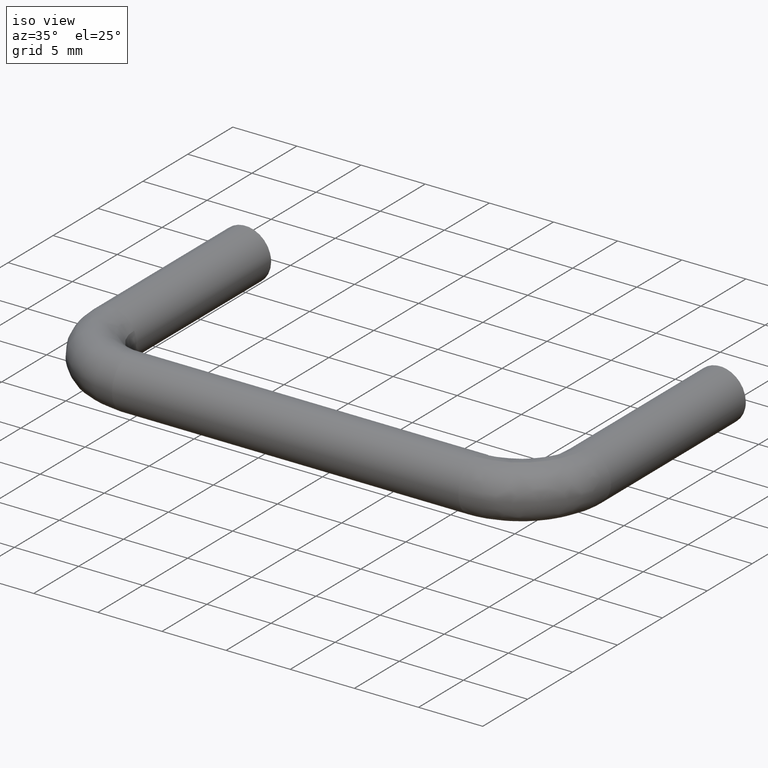
[diagram: clean part render]
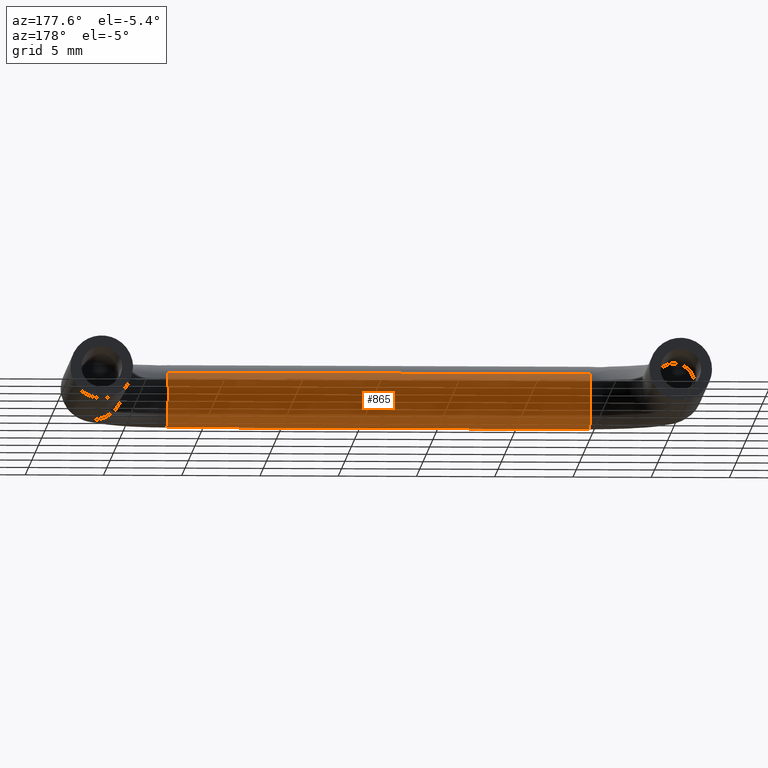
[diagram: tour spotlight — one face highlighted and labeled with its STEP entity id]
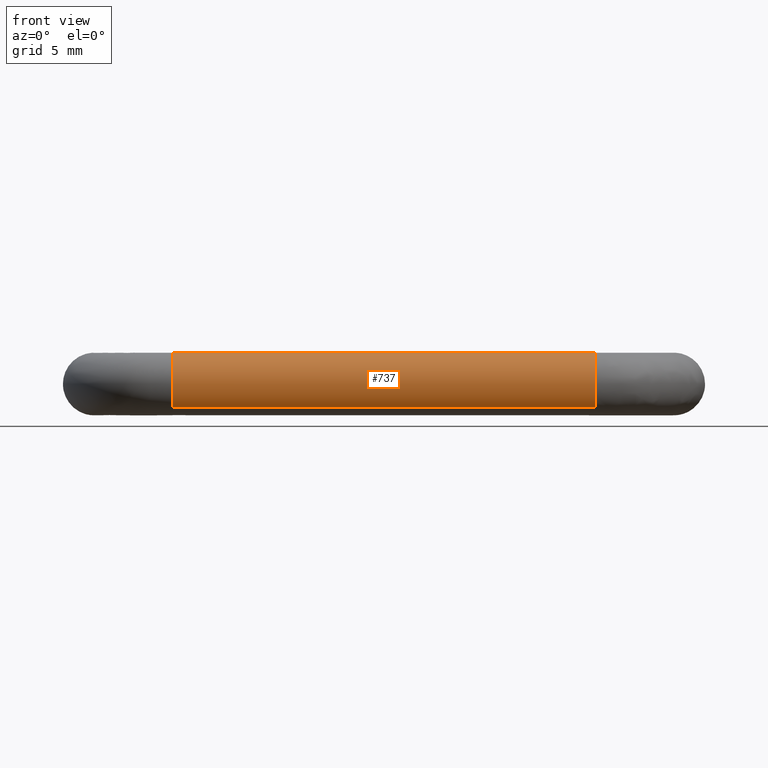
[diagram: tour spotlight — one face highlighted and labeled with its STEP entity id]
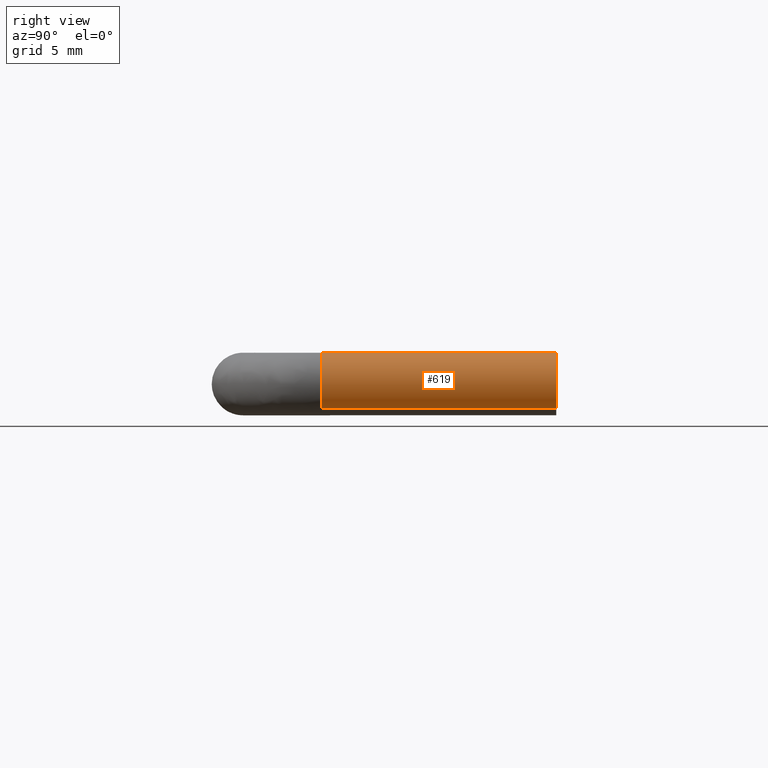
[diagram: tour spotlight — one face highlighted and labeled with its STEP entity id]
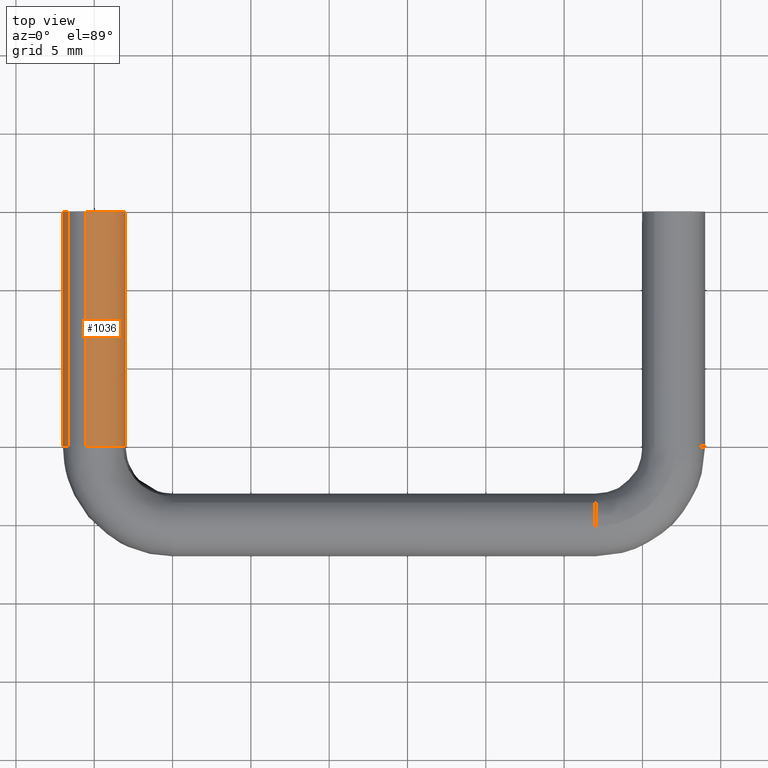
[diagram: tour spotlight — one face highlighted and labeled with its STEP entity id]
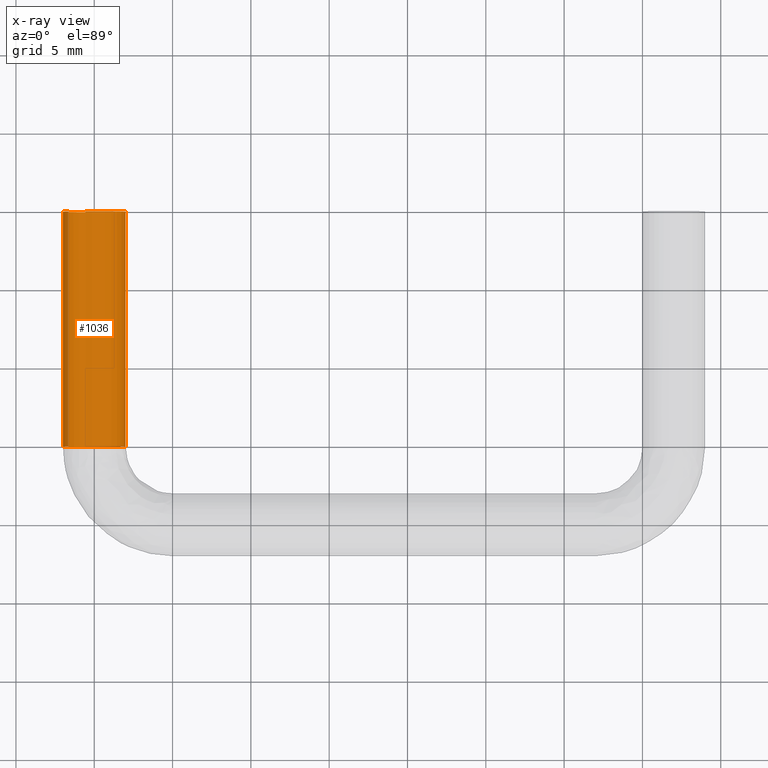
[diagram: x-ray of the same camera — body ghosted, this tour face saturated]
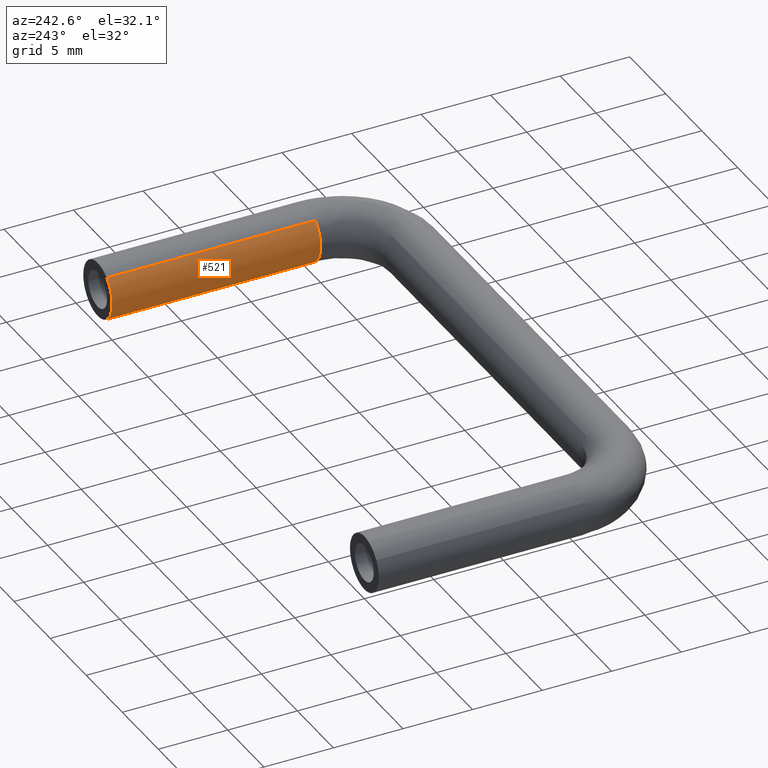
[diagram: tour spotlight — one face highlighted and labeled with its STEP entity id]
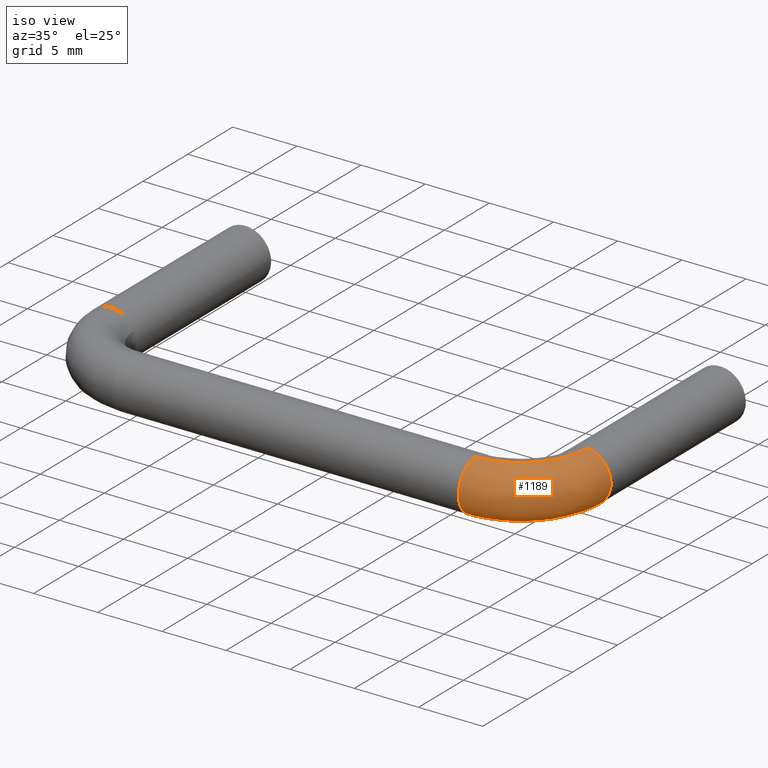
[diagram: tour spotlight — one face highlighted and labeled with its STEP entity id]
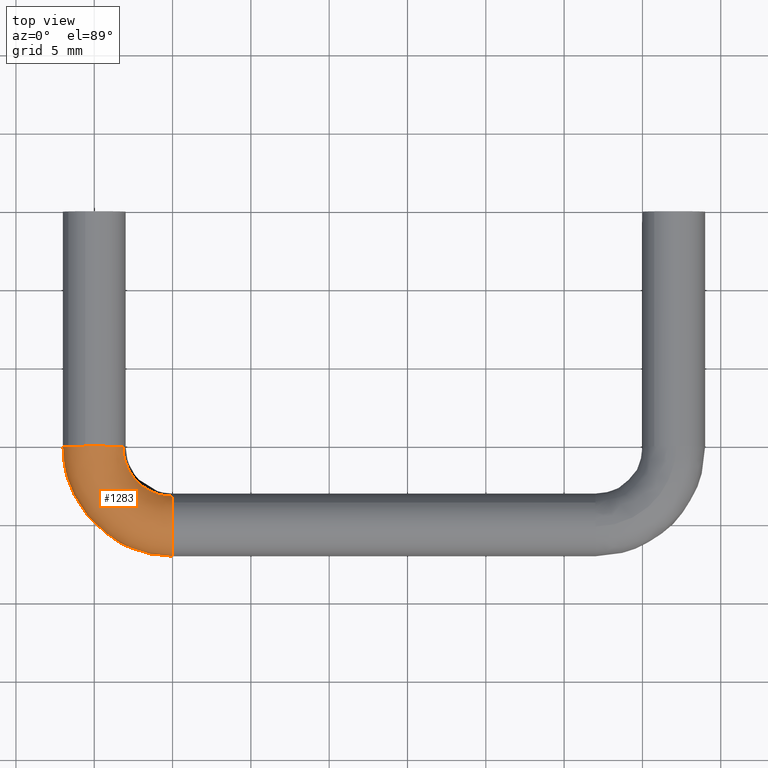
[diagram: tour spotlight — one face highlighted and labeled with its STEP entity id]
A machine part: a face-by-face anatomy tour. The part has 18 B-rep faces; the first image is the clean iso view, then the 7 largest visible faces are spotlighted one at a time (largest first), each with its STEP entity span.

Face 1 — auxiliary view, entity #865. In plain terms, the highlighted face is a freeform B-spline surface patch.
Definition (entity closure, byte-faithful):
#644=CARTESIAN_POINT('',(32.0,-18.591260098857589,1.419666119525739));
#645=VERTEX_POINT('',#644);
#661=CARTESIAN_POINT('',(5.000000000019877,-18.591260119800999,1.419666140301064));
#662=VERTEX_POINT('',#661);
#663=CARTESIAN_POINT('',(5.000000000019877,-18.591260119800999,1.419666140301064));
#664=CARTESIAN_POINT('',(32.0,-18.591260098857589,1.419666119525739));
#665=QUASI_UNIFORM_CURVE('',1,(#663,#664),.UNSPECIFIED.,.F.,.U.);
#666=EDGE_CURVE('',#662,#645,#665,.T.);
#685=CARTESIAN_POINT('',(4.999999182295871,-21.325239809866911,-1.497911695108569));
#686=VERTEX_POINT('',#685);
#700=CARTESIAN_POINT('',(32.0,-21.325239806286259,-1.497911698276708));
#701=VERTEX_POINT('',#700);
#702=CARTESIAN_POINT('',(4.999999182295871,-21.325239809866911,-1.497911695108569));
#703=CARTESIAN_POINT('',(32.0,-21.325239806286259,-1.497911698276708));
#704=QUASI_UNIFORM_CURVE('',1,(#702,#703),.UNSPECIFIED.,.F.,.U.);
#705=EDGE_CURVE('',#686,#701,#704,.T.);
#738=CARTESIAN_POINT('',(4.324998028318658,-21.325240096431472,-1.497911441578005));
#739=CARTESIAN_POINT('',(4.324998028318658,-19.827328654853474,-2.823151538009478));
#740=CARTESIAN_POINT('',(4.324998028318658,-18.502088558421999,-1.325240096431473));
#741=CARTESIAN_POINT('',(4.324998028318658,-17.250593514662498,0.089317726089447));
#742=CARTESIAN_POINT('',(4.324998028318658,-18.591260087566504,1.419666108321545));
#743=CARTESIAN_POINT('',(32.691875049609202,-21.325240096431472,-1.497911441578005));
#744=CARTESIAN_POINT('',(32.691875049609187,-19.827328654853460,-2.823151538009478));
#745=CARTESIAN_POINT('',(32.691875049609202,-18.502088558421988,-1.325240096431473));
#746=CARTESIAN_POINT('',(32.691875049609187,-17.250593514662498,0.089317726089447));
#747=CARTESIAN_POINT('',(32.691875049609202,-18.591260087566489,1.419666108321545));
#755=(BOUNDED_SURFACE()B_SPLINE_SURFACE(2,1,((#738,#743),(#739,#744),(#740,#745),(#741,#746),(#742,#747)),.UNSPECIFIED.,.F.,.F.,.U.)B_SPLINE_SURFACE_WITH_KNOTS((3,2,3),(2,2),(0.0,3.313708498984765,6.494868658010139),(0.0,28.366877021290549),.UNSPECIFIED.)GEOMETRIC_REPRESENTATION_ITEM()RATIONAL_B_SPLINE_SURFACE(((1.0,1.0),(0.707106781186548,0.707106781186548),(1.0,1.0),(0.718822509939086,0.718822509939086),(0.977505800795127,0.977505800795127)))REPRESENTATION_ITEM('')SURFACE());
#756=CARTESIAN_POINT('',(32.0,-18.0,0.0));
#757=VERTEX_POINT('',#756);
#758=CARTESIAN_POINT('',(31.999999999999993,-18.591260098857589,1.419666119525738));
#759=CARTESIAN_POINT('',(32.0,-18.000000000000007,0.832956562603464));
#760=CARTESIAN_POINT('',(32.0,-18.0,0.0));
#768=(BOUNDED_CURVE()B_SPLINE_CURVE(2,(#758,#759,#760),.UNSPECIFIED.,.F.,.U.)B_SPLINE_CURVE_WITH_KNOTS((3,3),(0.874417114703642,1.0),.UNSPECIFIED.)CURVE()GEOMETRIC_REPRESENTATION_ITEM()RATIONAL_B_SPLINE_CURVE((0.853556574977730,0.852870497990676,1.0))REPRESENTATION_ITEM(''));
#769=EDGE_CURVE('',#645,#757,#768,.T.);
#770=ORIENTED_EDGE('',*,*,#769,.T.);
#771=CARTESIAN_POINT('',(32.000000000309427,-19.974867919650571,-1.999842088400309));
#772=VERTEX_POINT('',#771);
#773=CARTESIAN_POINT('',(32.0,-18.0,0.0));
#774=CARTESIAN_POINT('',(32.000000000000007,-18.0,-1.975023858663560));
#775=CARTESIAN_POINT('',(32.000000000309427,-19.974867919650574,-1.999842088400309));
#783=(BOUNDED_CURVE()B_SPLINE_CURVE(2,(#773,#774,#775),.UNSPECIFIED.,.F.,.U.)B_SPLINE_CURVE_WITH_KNOTS((3,3),(0.0,0.247784295819239),.UNSPECIFIED.)CURVE()GEOMETRIC_REPRESENTATION_ITEM()RATIONAL_B_SPLINE_CURVE((1.0,0.709702640104314,0.994854295408121))REPRESENTATION_ITEM(''));
#784=EDGE_CURVE('',#757,#772,#783,.T.);
#785=ORIENTED_EDGE('',*,*,#784,.T.);
#786=CARTESIAN_POINT('',(32.000000000309427,-19.974867919650567,-1.999842088400309));
#787=CARTESIAN_POINT('',(31.999999999999996,-19.987433463433430,-2.0));
#788=CARTESIAN_POINT('',(32.0,-20.0,-2.0));
#789=CARTESIAN_POINT('',(31.999999999999996,-20.757731774383874,-2.000000000000000));
#790=CARTESIAN_POINT('',(31.999999999999996,-21.325239806286262,-1.497911698276709));
#798=(BOUNDED_CURVE()B_SPLINE_CURVE(2,(#786,#787,#788,#789,#790),.UNSPECIFIED.,.F.,.U.)B_SPLINE_CURVE_WITH_KNOTS((3,2,3),(0.247784295819239,0.250000000000000,0.365779829550916),.UNSPECIFIED.)CURVE()GEOMETRIC_REPRESENTATION_ITEM()RATIONAL_B_SPLINE_CURVE((0.994854295408121,0.997404141082234,1.0,0.864355492196637,0.854350168337204))REPRESENTATION_ITEM(''));
#799=EDGE_CURVE('',#772,#701,#798,.T.);
#800=ORIENTED_EDGE('',*,*,#799,.T.);
#801=ORIENTED_EDGE('',*,*,#705,.F.);
#802=CARTESIAN_POINT('',(4.999998076415995,-19.276704659011020,-1.864629681651536));
#803=VERTEX_POINT('',#802);
#804=CARTESIAN_POINT('',(4.999998076415995,-19.276704659011028,-1.864629681651536));
#805=CARTESIAN_POINT('',(4.999998199665956,-19.625684528366516,-1.999999999998314));
#806=CARTESIAN_POINT('',(4.999998379672770,-20.000000000000590,-1.999999999998482));
#807=CARTESIAN_POINT('',(4.999998744062953,-20.757731779851195,-1.999999999998824));
#808=CARTESIAN_POINT('',(4.999999182295871,-21.325239809866908,-1.497911695108569));
#816=(BOUNDED_CURVE()B_SPLINE_CURVE(2,(#804,#805,#806,#807,#808),.UNSPECIFIED.,.F.,.U.)B_SPLINE_CURVE_WITH_KNOTS((3,2,3),(0.188590419563113,0.250000000000000,0.365779830272935),.UNSPECIFIED.)CURVE()GEOMETRIC_REPRESENTATION_ITEM()RATIONAL_B_SPLINE_CURVE((0.891453693067869,0.928054201279426,1.0,0.864355491350739,0.854350168212415))REPRESENTATION_ITEM(''));
#817=EDGE_CURVE('',#803,#686,#816,.T.);
#818=ORIENTED_EDGE('',*,*,#817,.F.);
#819=CARTESIAN_POINT('',(5.0,-18.0,0.0));
#820=VERTEX_POINT('',#819);
#821=CARTESIAN_POINT('',(5.0,-18.0,0.0));
#822=CARTESIAN_POINT('',(4.999999038207998,-18.000000000000355,-1.369392187168714));
#823=CARTESIAN_POINT('',(4.999998076415995,-19.276704659011028,-1.864629681651536));
#831=(BOUNDED_CURVE()B_SPLINE_CURVE(2,(#821,#822,#823),.UNSPECIFIED.,.F.,.U.)B_SPLINE_CURVE_WITH_KNOTS((3,3),(0.0,0.188590419563113),.UNSPECIFIED.)CURVE()GEOMETRIC_REPRESENTATION_ITEM()RATIONAL_B_SPLINE_CURVE((1.0,0.779052579907122,0.891453693067869))REPRESENTATION_ITEM(''));
#832=EDGE_CURVE('',#820,#803,#831,.T.);
#833=ORIENTED_EDGE('',*,*,#832,.F.);
#834=CARTESIAN_POINT('',(5.000000000040116,-18.179788058653141,0.828751162037366));
#835=VERTEX_POINT('',#834);
#836=CARTESIAN_POINT('',(5.000000000040116,-18.179788058653138,0.828751162037366));
#837=CARTESIAN_POINT('',(5.0,-18.000000000000004,0.433877059606800));
#838=CARTESIAN_POINT('',(5.0,-18.0,0.0));
#846=(BOUNDED_CURVE()B_SPLINE_CURVE(2,(#836,#837,#838),.UNSPECIFIED.,.F.,.U.)B_SPLINE_CURVE_WITH_KNOTS((3,3),(0.929624510033230,1.0),.UNSPECIFIED.)CURVE()GEOMETRIC_REPRESENTATION_ITEM()RATIONAL_B_SPLINE_CURVE((0.881519651443544,0.917549984872236,1.0))REPRESENTATION_ITEM(''));
#847=EDGE_CURVE('',#835,#820,#846,.T.);
#848=ORIENTED_EDGE('',*,*,#847,.F.);
#849=CARTESIAN_POINT('',(5.000000000019877,-18.591260119801010,1.419666140301064));
#850=CARTESIAN_POINT('',(5.000000000028706,-18.331453841666921,1.161859436222239));
#851=CARTESIAN_POINT('',(5.000000000040115,-18.179788058653134,0.828751162037366));
#859=(BOUNDED_CURVE()B_SPLINE_CURVE(2,(#849,#850,#851),.UNSPECIFIED.,.F.,.U.)B_SPLINE_CURVE_WITH_KNOTS((3,3),(0.874417110250492,0.929624510033231),.UNSPECIFIED.)CURVE()GEOMETRIC_REPRESENTATION_ITEM()RATIONAL_B_SPLINE_CURVE((0.853556575026387,0.853254966922805,0.881519651443544))REPRESENTATION_ITEM(''));
#860=EDGE_CURVE('',#662,#835,#859,.T.);
#861=ORIENTED_EDGE('',*,*,#860,.F.);
#862=ORIENTED_EDGE('',*,*,#666,.T.);
#863=EDGE_LOOP('',(#770,#785,#800,#801,#818,#833,#848,#861,#862));
#864=FACE_OUTER_BOUND('',#863,.T.);
#865=ADVANCED_FACE('',(#864),#755,.T.);

Face 2 — front view, entity #737. In plain terms, the highlighted face is a freeform B-spline surface patch.
Definition (entity closure, byte-faithful):
#620=CARTESIAN_POINT('',(4.324998028318658,-18.591260087566504,1.419666108321545));
#621=CARTESIAN_POINT('',(4.324998028318658,-18.631890321656851,1.459983639379791));
#622=CARTESIAN_POINT('',(4.324998028318658,-18.674759903568528,1.497911441578005));
#623=CARTESIAN_POINT('',(4.324998028318658,-20.172671345146536,2.823151538009478));
#624=CARTESIAN_POINT('',(4.324998028318658,-21.497911441578012,1.325240096431473));
#625=CARTESIAN_POINT('',(4.324998028318658,-22.823151538009469,-0.172671345146532));
#626=CARTESIAN_POINT('',(4.324998028318658,-21.325240096431472,-1.497911441578005));
#627=CARTESIAN_POINT('',(32.691875049609202,-18.591260087566489,1.419666108321545));
#628=CARTESIAN_POINT('',(32.691875049609195,-18.631890321656844,1.459983639379791));
#629=CARTESIAN_POINT('',(32.691875049609202,-18.674759903568528,1.497911441578005));
#630=CARTESIAN_POINT('',(32.691875049609187,-20.172671345146536,2.823151538009478));
#631=CARTESIAN_POINT('',(32.691875049609202,-21.497911441578001,1.325240096431473));
#632=CARTESIAN_POINT('',(32.691875049609187,-22.823151538009469,-0.172671345146532));
#633=CARTESIAN_POINT('',(32.691875049609202,-21.325240096431472,-1.497911441578005));
#641=(BOUNDED_SURFACE()B_SPLINE_SURFACE(2,1,((#620,#627),(#621,#628),(#622,#629),(#623,#630),(#624,#631),(#625,#632),(#626,#633)),.UNSPECIFIED.,.F.,.F.,.U.)B_SPLINE_SURFACE_WITH_KNOTS((3,2,2,3),(2,2),(0.0,0.132548339959391,3.446256838944149,6.759965337928908),(0.0,28.366877021290549),.UNSPECIFIED.)GEOMETRIC_REPRESENTATION_ITEM()RATIONAL_B_SPLINE_SURFACE(((0.977505800795127,0.977505800795127),(0.988284271247462,0.988284271247462),(1.0,1.0),(0.707106781186548,0.707106781186548),(1.0,1.0),(0.707106781186548,0.707106781186548),(1.0,1.0)))REPRESENTATION_ITEM('')SURFACE());
#642=CARTESIAN_POINT('',(32.000000000036209,-20.139466503343179,1.995131347667422));
#643=VERTEX_POINT('',#642);
#644=CARTESIAN_POINT('',(32.0,-18.591260098857589,1.419666119525739));
#645=VERTEX_POINT('',#644);
#646=CARTESIAN_POINT('',(32.000000000036216,-20.139466503343176,1.995131347667422));
#647=CARTESIAN_POINT('',(32.0,-20.069818231942428,2.000000000000000));
#648=CARTESIAN_POINT('',(32.0,-20.0,2.0));
#649=CARTESIAN_POINT('',(32.0,-19.176095071274911,2.000000000000000));
#650=CARTESIAN_POINT('',(31.999999999999993,-18.591260098857589,1.419666119525738));
#658=(BOUNDED_CURVE()B_SPLINE_CURVE(2,(#646,#647,#648,#649,#650),.UNSPECIFIED.,.F.,.U.)B_SPLINE_CURVE_WITH_KNOTS((3,2,3),(0.737833686501982,0.750000000000000,0.874417114703642),.UNSPECIFIED.)CURVE()GEOMETRIC_REPRESENTATION_ITEM()RATIONAL_B_SPLINE_CURVE((0.972879876316946,0.985746277113888,1.0,0.854236283195871,0.853556574977730))REPRESENTATION_ITEM(''));
#659=EDGE_CURVE('',#643,#645,#658,.T.);
#660=ORIENTED_EDGE('',*,*,#659,.T.);
#661=CARTESIAN_POINT('',(5.000000000019877,-18.591260119800999,1.419666140301064));
#662=VERTEX_POINT('',#661);
#663=CARTESIAN_POINT('',(5.000000000019877,-18.591260119800999,1.419666140301064));
#664=CARTESIAN_POINT('',(32.0,-18.591260098857589,1.419666119525739));
#665=QUASI_UNIFORM_CURVE('',1,(#663,#664),.UNSPECIFIED.,.F.,.U.);
#666=EDGE_CURVE('',#662,#645,#665,.T.);
#667=ORIENTED_EDGE('',*,*,#666,.F.);
#668=CARTESIAN_POINT('',(5.0,-22.0,0.0));
#669=VERTEX_POINT('',#668);
#670=CARTESIAN_POINT('',(5.0,-22.0,0.0));
#671=CARTESIAN_POINT('',(5.000000000000001,-22.000000000000007,2.000000000000000));
#672=CARTESIAN_POINT('',(5.0,-20.0,2.0));
#673=CARTESIAN_POINT('',(5.0,-19.176095105796154,2.000000000000000));
#674=CARTESIAN_POINT('',(5.000000000019877,-18.591260119801010,1.419666140301064));
#682=(BOUNDED_CURVE()B_SPLINE_CURVE(2,(#670,#671,#672,#673,#674),.UNSPECIFIED.,.F.,.U.)B_SPLINE_CURVE_WITH_KNOTS((3,2,3),(0.500000000000000,0.750000000000000,0.874417110250491),.UNSPECIFIED.)CURVE()GEOMETRIC_REPRESENTATION_ITEM()RATIONAL_B_SPLINE_CURVE((1.0,0.707106781186548,1.0,0.854236288413062,0.853556575026387))REPRESENTATION_ITEM(''));
#683=EDGE_CURVE('',#669,#662,#682,.T.);
#684=ORIENTED_EDGE('',*,*,#683,.F.);
#685=CARTESIAN_POINT('',(4.999999182295871,-21.325239809866911,-1.497911695108569));
#686=VERTEX_POINT('',#685);
#687=CARTESIAN_POINT('',(4.999999182295872,-21.325239809866911,-1.497911695108569));
#688=CARTESIAN_POINT('',(4.999999703351359,-22.000000000000114,-0.900934767641625));
#689=CARTESIAN_POINT('',(5.0,-22.0,0.0));
#697=(BOUNDED_CURVE()B_SPLINE_CURVE(2,(#687,#688,#689),.UNSPECIFIED.,.F.,.U.)B_SPLINE_CURVE_WITH_KNOTS((3,3),(0.365779830272935,0.500000000000000),.UNSPECIFIED.)CURVE()GEOMETRIC_REPRESENTATION_ITEM()RATIONAL_B_SPLINE_CURVE((0.854350168212415,0.842751289835808,1.0))REPRESENTATION_ITEM(''));
#698=EDGE_CURVE('',#686,#669,#697,.T.);
#699=ORIENTED_EDGE('',*,*,#698,.F.);
#700=CARTESIAN_POINT('',(32.0,-21.325239806286259,-1.497911698276708));
#701=VERTEX_POINT('',#700);
#702=CARTESIAN_POINT('',(4.999999182295871,-21.325239809866911,-1.497911695108569));
#703=CARTESIAN_POINT('',(32.0,-21.325239806286259,-1.497911698276708));
#704=QUASI_UNIFORM_CURVE('',1,(#702,#703),.UNSPECIFIED.,.F.,.U.);
#705=EDGE_CURVE('',#686,#701,#704,.T.);
#706=ORIENTED_EDGE('',*,*,#705,.T.);
#707=CARTESIAN_POINT('',(32.0,-22.0,0.0));
#708=VERTEX_POINT('',#707);
#709=CARTESIAN_POINT('',(31.999999999999996,-21.325239806286262,-1.497911698276709));
#710=CARTESIAN_POINT('',(32.0,-21.999999999999996,-0.900934773392652));
#711=CARTESIAN_POINT('',(32.0,-22.0,0.0));
#719=(BOUNDED_CURVE()B_SPLINE_CURVE(2,(#709,#710,#711),.UNSPECIFIED.,.F.,.U.)B_SPLINE_CURVE_WITH_KNOTS((3,3),(0.365779829550916,0.500000000000000),.UNSPECIFIED.)CURVE()GEOMETRIC_REPRESENTATION_ITEM()RATIONAL_B_SPLINE_CURVE((0.854350168337204,0.842751288989911,1.0))REPRESENTATION_ITEM(''));
#720=EDGE_CURVE('',#701,#708,#719,.T.);
#721=ORIENTED_EDGE('',*,*,#720,.T.);
#722=CARTESIAN_POINT('',(32.0,-22.0,0.0));
#723=CARTESIAN_POINT('',(32.0,-22.0,1.865073694172844));
#724=CARTESIAN_POINT('',(32.000000000036216,-20.139466503343183,1.995131347667422));
#732=(BOUNDED_CURVE()B_SPLINE_CURVE(2,(#722,#723,#724),.UNSPECIFIED.,.F.,.U.)B_SPLINE_CURVE_WITH_KNOTS((3,3),(0.500000000000000,0.737833686501983),.UNSPECIFIED.)CURVE()GEOMETRIC_REPRESENTATION_ITEM()RATIONAL_B_SPLINE_CURVE((1.0,0.721360504072659,0.972879876316947))REPRESENTATION_ITEM(''));
#733=EDGE_CURVE('',#708,#643,#732,.T.);
#734=ORIENTED_EDGE('',*,*,#733,.T.);
#735=EDGE_LOOP('',(#660,#667,#684,#699,#706,#721,#734));
#736=FACE_OUTER_BOUND('',#735,.T.);
#737=ADVANCED_FACE('',(#736),#641,.T.);

Face 3 — right view, entity #619. In plain terms, the highlighted face is a freeform B-spline surface patch.
Definition (entity closure, byte-faithful):
#428=CARTESIAN_POINT('',(38.245028264184292,-14.999999999999980,-1.565217116370958));
#429=VERTEX_POINT('',#428);
#460=CARTESIAN_POINT('',(35.754971735815722,-14.999999999999980,1.565217116370957));
#461=VERTEX_POINT('',#460);
#475=CARTESIAN_POINT('',(35.754972200187481,4.461709E-015,1.565217485747734));
#476=VERTEX_POINT('',#475);
#477=CARTESIAN_POINT('',(35.754971735815722,-14.999999999999980,1.565217116370957));
#478=CARTESIAN_POINT('',(35.754972200187481,4.461709E-015,1.565217485747734));
#479=QUASI_UNIFORM_CURVE('',1,(#477,#478),.UNSPECIFIED.,.F.,.U.);
#480=EDGE_CURVE('',#461,#476,#479,.T.);
#497=CARTESIAN_POINT('',(38.245027799812519,5.405398E-015,-1.565217485747733));
#498=VERTEX_POINT('',#497);
#514=CARTESIAN_POINT('',(38.245028264184292,-14.999999999999980,-1.565217116370958));
#515=CARTESIAN_POINT('',(38.245027799812519,5.405398E-015,-1.565217485747733));
#516=QUASI_UNIFORM_CURVE('',1,(#514,#515),.UNSPECIFIED.,.F.,.U.);
#517=EDGE_CURVE('',#429,#498,#516,.T.);
#522=CARTESIAN_POINT('',(35.754970726724757,-15.375000000290459,1.565216313704828));
#523=CARTESIAN_POINT('',(37.320187040429602,-15.375000000290452,2.810245586980066));
#524=CARTESIAN_POINT('',(38.565216313704830,-15.375000000290459,1.245029273275238));
#525=CARTESIAN_POINT('',(39.810245586980059,-15.375000000290452,-0.320187040429590));
#526=CARTESIAN_POINT('',(38.245029273275243,-15.375000000290459,-1.565216313704828));
#527=CARTESIAN_POINT('',(35.754970726724757,0.384375000007267,1.565216313704828));
#528=CARTESIAN_POINT('',(37.320187040429602,0.384375000007267,2.810245586980066));
#529=CARTESIAN_POINT('',(38.565216313704830,0.384375000007267,1.245029273275238));
#530=CARTESIAN_POINT('',(39.810245586980059,0.384375000007267,-0.320187040429590));
#531=CARTESIAN_POINT('',(38.245029273275243,0.384375000007267,-1.565216313704828));
#539=(BOUNDED_SURFACE()B_SPLINE_SURFACE(2,1,((#522,#527),(#523,#528),(#524,#529),(#525,#530),(#526,#531)),.UNSPECIFIED.,.F.,.F.,.U.)B_SPLINE_SURFACE_WITH_KNOTS((3,2,3),(2,2),(0.0,3.313708498984768,6.627416997969536),(0.0,15.759375000297730),.UNSPECIFIED.)GEOMETRIC_REPRESENTATION_ITEM()RATIONAL_B_SPLINE_SURFACE(((1.0,1.0),(0.707106781186548,0.707106781186548),(1.0,1.0),(0.707106781186548,0.707106781186548),(1.0,1.0)))REPRESENTATION_ITEM('')SURFACE());
#540=CARTESIAN_POINT('',(39.0,-15.0,0.0));
#541=VERTEX_POINT('',#540);
#542=CARTESIAN_POINT('',(38.245028264184285,-14.999999999999980,-1.565217116370957));
#543=CARTESIAN_POINT('',(38.999999999999993,-14.999999999999995,-0.964686276324077));
#544=CARTESIAN_POINT('',(39.0,-15.0,0.0));
#552=(BOUNDED_CURVE()B_SPLINE_CURVE(2,(#542,#543,#544),.UNSPECIFIED.,.F.,.U.)B_SPLINE_CURVE_WITH_KNOTS((3,3),(0.357863779800497,0.500000000000000),.UNSPECIFIED.)CURVE()GEOMETRIC_REPRESENTATION_ITEM()RATIONAL_B_SPLINE_CURVE((0.856305649992272,0.833477059823160,1.0))REPRESENTATION_ITEM(''));
#553=EDGE_CURVE('',#429,#541,#552,.T.);
#554=ORIENTED_EDGE('',*,*,#553,.F.);
#555=ORIENTED_EDGE('',*,*,#517,.T.);
#556=CARTESIAN_POINT('',(39.0,5.204170E-015,0.0));
#557=VERTEX_POINT('',#556);
#558=CARTESIAN_POINT('',(38.245027799812519,5.405398E-015,-1.565217485747733));
#559=CARTESIAN_POINT('',(39.0,5.204170E-015,-0.964686642030361));
#560=CARTESIAN_POINT('',(39.0,5.204170E-015,0.0));
#568=(BOUNDED_CURVE()B_SPLINE_CURVE(2,(#558,#559,#560),.UNSPECIFIED.,.F.,.U.)B_SPLINE_CURVE_WITH_KNOTS((3,3),(0.357863734890326,0.500000000000000),.UNSPECIFIED.)CURVE()GEOMETRIC_REPRESENTATION_ITEM()RATIONAL_B_SPLINE_CURVE((0.856305664418394,0.833477007207621,1.0))REPRESENTATION_ITEM(''));
#569=EDGE_CURVE('',#498,#557,#568,.T.);
#570=ORIENTED_EDGE('',*,*,#569,.T.);
#571=CARTESIAN_POINT('',(39.0,5.204170E-015,0.0));
#572=CARTESIAN_POINT('',(39.000000000000007,5.204170E-015,2.000000000000000));
#573=CARTESIAN_POINT('',(37.0,5.204170E-015,2.0));
#574=CARTESIAN_POINT('',(36.301569789338281,5.204170E-015,2.000000000000000));
#575=CARTESIAN_POINT('',(35.754972200187488,4.461709E-015,1.565217485747734));
#583=(BOUNDED_CURVE()B_SPLINE_CURVE(2,(#571,#572,#573,#574,#575),.UNSPECIFIED.,.F.,.U.)B_SPLINE_CURVE_WITH_KNOTS((3,2,3),(0.500000000000000,0.750000000000000,0.857863734890325),.UNSPECIFIED.)CURVE()GEOMETRIC_REPRESENTATION_ITEM()RATIONAL_B_SPLINE_CURVE((1.0,0.707106781186548,1.0,0.873629773978927,0.856305664418394))REPRESENTATION_ITEM(''));
#584=EDGE_CURVE('',#557,#476,#583,.T.);
#585=ORIENTED_EDGE('',*,*,#584,.T.);
#586=ORIENTED_EDGE('',*,*,#480,.F.);
#587=CARTESIAN_POINT('',(37.139466504186352,-15.000000000283370,1.995131347608482));
#588=VERTEX_POINT('',#587);
#589=CARTESIAN_POINT('',(37.139466504186345,-15.000000000283373,1.995131347608482));
#590=CARTESIAN_POINT('',(37.069818232788677,-14.999999999999996,2.0));
#591=CARTESIAN_POINT('',(37.0,-15.0,2.0));
#592=CARTESIAN_POINT('',(36.301569456475768,-15.000000000000005,2.000000000000000));
#593=CARTESIAN_POINT('',(35.754971735815708,-14.999999999999984,1.565217116370958));
#601=(BOUNDED_CURVE()B_SPLINE_CURVE(2,(#589,#590,#591,#592,#593),.UNSPECIFIED.,.F.,.U.)B_SPLINE_CURVE_WITH_KNOTS((3,2,3),(0.737833686356618,0.750000000000000,0.857863779800497),.UNSPECIFIED.)CURVE()GEOMETRIC_REPRESENTATION_ITEM()RATIONAL_B_SPLINE_CURVE((0.972879876009488,0.985746276943583,1.0,0.873629721363388,0.856305649992272))REPRESENTATION_ITEM(''));
#602=EDGE_CURVE('',#588,#461,#601,.T.);
#603=ORIENTED_EDGE('',*,*,#602,.F.);
#604=CARTESIAN_POINT('',(39.0,-15.0,0.0));
#605=CARTESIAN_POINT('',(39.000000000000007,-15.0,1.865073692592591));
#606=CARTESIAN_POINT('',(37.139466504186345,-15.000000000283368,1.995131347608482));
#614=(BOUNDED_CURVE()B_SPLINE_CURVE(2,(#604,#605,#606),.UNSPECIFIED.,.F.,.U.)B_SPLINE_CURVE_WITH_KNOTS((3,3),(0.500000000000000,0.737833686356619),.UNSPECIFIED.)CURVE()GEOMETRIC_REPRESENTATION_ITEM()RATIONAL_B_SPLINE_CURVE((1.0,0.721360504242963,0.972879876009491))REPRESENTATION_ITEM(''));
#615=EDGE_CURVE('',#541,#588,#614,.T.);
#616=ORIENTED_EDGE('',*,*,#615,.F.);
#617=EDGE_LOOP('',(#554,#555,#570,#585,#586,#603,#616));
#618=FACE_OUTER_BOUND('',#617,.T.);
#619=ADVANCED_FACE('',(#618),#539,.T.);

Face 4 — top view, entity #1036. An x-ray twin of the same camera follows (body ghosted, this face saturated) — the face is partly hidden behind the body. In plain terms, the highlighted face is a freeform B-spline surface patch.
Definition (entity closure, byte-faithful):
#866=CARTESIAN_POINT('',(-1.654334544363574,0.375000000005425,1.123911569174978));
#867=CARTESIAN_POINT('',(-2.186699413562218,0.375000000005425,0.340300458233743));
#868=CARTESIAN_POINT('',(-1.917639469736385,0.375000000005425,-0.568030689407845));
#869=CARTESIAN_POINT('',(-1.349608780328540,0.375000000005425,-2.485670159144230));
#870=CARTESIAN_POINT('',(0.568030689407845,0.375000000005425,-1.917639469736385));
#871=CARTESIAN_POINT('',(2.485670159144230,0.375000000005426,-1.349608780328540));
#872=CARTESIAN_POINT('',(1.917639469736385,0.375000000005426,0.568030689407845));
#873=CARTESIAN_POINT('',(1.349608780328540,0.375000000005425,2.485670159144230));
#874=CARTESIAN_POINT('',(-0.568030689407845,0.375000000005425,1.917639469736385));
#875=CARTESIAN_POINT('',(-1.654334544363573,-15.384375000222555,1.123911569174978));
#876=CARTESIAN_POINT('',(-2.186699413562216,-15.384375000222546,0.340300458233743));
#877=CARTESIAN_POINT('',(-1.917639469736383,-15.384375000222549,-0.568030689407845));
#878=CARTESIAN_POINT('',(-1.349608780328538,-15.384375000222549,-2.485670159144230));
#879=CARTESIAN_POINT('',(0.568030689407847,-15.384375000222549,-1.917639469736385));
#880=CARTESIAN_POINT('',(2.485670159144233,-15.384375000222549,-1.349608780328540));
#881=CARTESIAN_POINT('',(1.917639469736387,-15.384375000222549,0.568030689407845));
#882=CARTESIAN_POINT('',(1.349608780328542,-15.384375000222549,2.485670159144230));
#883=CARTESIAN_POINT('',(-0.568030689407843,-15.384375000222549,1.917639469736385));
#891=(BOUNDED_SURFACE()B_SPLINE_SURFACE(2,1,((#866,#875),(#867,#876),(#868,#877),(#869,#878),(#870,#879),(#871,#880),(#872,#881),(#873,#882),(#874,#883)),.UNSPECIFIED.,.F.,.F.,.U.)B_SPLINE_SURFACE_WITH_KNOTS((3,2,2,2,3),(2,2),(0.0,1.855676759431465,5.169385258416224,8.483093757400983,11.796802256385741),(0.0,15.759375000227980),.UNSPECIFIED.)GEOMETRIC_REPRESENTATION_ITEM()RATIONAL_B_SPLINE_SURFACE(((0.855662221768731,0.855662221768731),(0.835979797464467,0.835979797464467),(1.0,1.0),(0.707106781186548,0.707106781186548),(1.0,1.0),(0.707106781186548,0.707106781186548),(1.0,1.0),(0.707106781186548,0.707106781186548),(1.0,1.0)))REPRESENTATION_ITEM('')SURFACE());
#892=CARTESIAN_POINT('',(-1.999999999999998,-15.0,0.0));
#893=VERTEX_POINT('',#892);
#894=CARTESIAN_POINT('',(-1.654334544362889,-15.0,1.123911569175985));
#895=VERTEX_POINT('',#894);
#896=CARTESIAN_POINT('',(-1.999999999999998,-15.0,0.0));
#897=CARTESIAN_POINT('',(-1.999999999999998,-15.000000000000002,0.615111482286668));
#898=CARTESIAN_POINT('',(-1.654334544362889,-14.999999999999998,1.123911569175985));
#906=(BOUNDED_CURVE()B_SPLINE_CURVE(2,(#896,#897,#898),.UNSPECIFIED.,.F.,.U.)B_SPLINE_CURVE_WITH_KNOTS((3,3),(0.500000000000000,0.596450219094675),.UNSPECIFIED.)CURVE()GEOMETRIC_REPRESENTATION_ITEM()RATIONAL_B_SPLINE_CURVE((1.0,0.887001539496392,0.861192889176255))REPRESENTATION_ITEM(''));
#907=EDGE_CURVE('',#893,#895,#906,.T.);
#908=ORIENTED_EDGE('',*,*,#907,.T.);
#909=CARTESIAN_POINT('',(-1.654334544362891,6.163132E-016,1.123911569175985));
#910=VERTEX_POINT('',#909);
#911=CARTESIAN_POINT('',(-1.654334544362891,6.163132E-016,1.123911569175985));
#912=CARTESIAN_POINT('',(-1.654334544362889,-15.0,1.123911569175985));
#913=QUASI_UNIFORM_CURVE('',1,(#911,#912),.UNSPECIFIED.,.F.,.U.);
#914=EDGE_CURVE('',#910,#895,#913,.T.);
#915=ORIENTED_EDGE('',*,*,#914,.F.);
#916=CARTESIAN_POINT('',(-2.0,0.0,0.0));
#917=VERTEX_POINT('',#916);
#918=CARTESIAN_POINT('',(-2.0,0.0,0.0));
#919=CARTESIAN_POINT('',(-2.000000000000000,0.0,0.615111482286668));
#920=CARTESIAN_POINT('',(-1.654334544362892,6.163132E-016,1.123911569175985));
#928=(BOUNDED_CURVE()B_SPLINE_CURVE(2,(#918,#919,#920),.UNSPECIFIED.,.F.,.U.)B_SPLINE_CURVE_WITH_KNOTS((3,3),(0.500000000000000,0.596450219094675),.UNSPECIFIED.)CURVE()GEOMETRIC_REPRESENTATION_ITEM()RATIONAL_B_SPLINE_CURVE((1.0,0.887001539496392,0.861192889176255))REPRESENTATION_ITEM(''));
#929=EDGE_CURVE('',#917,#910,#928,.T.);
#930=ORIENTED_EDGE('',*,*,#929,.F.);
#931=CARTESIAN_POINT('',(2.0,0.0,0.0));
#932=VERTEX_POINT('',#931);
#933=CARTESIAN_POINT('',(2.0,0.0,0.0));
#934=CARTESIAN_POINT('',(2.000000000000000,0.0,-2.000000000000000));
#935=CARTESIAN_POINT('',(0.0,0.0,-2.0));
#936=CARTESIAN_POINT('',(-2.000000000000000,0.0,-2.000000000000000));
#937=CARTESIAN_POINT('',(-2.0,0.0,0.0));
#945=(BOUNDED_CURVE()B_SPLINE_CURVE(2,(#933,#934,#935,#936,#937),.UNSPECIFIED.,.F.,.U.)B_SPLINE_CURVE_WITH_KNOTS((3,2,3),(0.0,0.250000000000000,0.500000000000000),.UNSPECIFIED.)CURVE()GEOMETRIC_REPRESENTATION_ITEM()RATIONAL_B_SPLINE_CURVE((1.0,0.707106781186548,1.0,0.707106781186548,1.0))REPRESENTATION_ITEM(''));
#946=EDGE_CURVE('',#932,#917,#945,.T.);
#947=ORIENTED_EDGE('',*,*,#946,.F.);
#948=CARTESIAN_POINT('',(-0.568029256808809,-2.775558E-016,1.917639894090389));
#949=VERTEX_POINT('',#948);
#950=CARTESIAN_POINT('',(-0.568029256808809,-2.775558E-016,1.917639894090389));
#951=CARTESIAN_POINT('',(-0.289985436214155,0.0,2.000000000000000));
#952=CARTESIAN_POINT('',(0.0,0.0,2.0));
#953=CARTESIAN_POINT('',(2.000000000000000,0.0,2.000000000000000));
#954=CARTESIAN_POINT('',(2.0,0.0,0.0));
#962=(BOUNDED_CURVE()B_SPLINE_CURVE(2,(#950,#951,#952,#953,#954),.UNSPECIFIED.,.F.,.U.)B_SPLINE_CURVE_WITH_KNOTS((3,2,3),(0.701641637059280,0.750000000000000,1.0),.UNSPECIFIED.)CURVE()GEOMETRIC_REPRESENTATION_ITEM()RATIONAL_B_SPLINE_CURVE((0.908607385770247,0.943344653686973,1.0,0.707106781186548,1.0))REPRESENTATION_ITEM(''));
#963=EDGE_CURVE('',#949,#932,#962,.T.);
#964=ORIENTED_EDGE('',*,*,#963,.F.);
#965=CARTESIAN_POINT('',(-0.568029238874980,-15.0,1.917639899402601));
#966=VERTEX_POINT('',#965);
#967=CARTESIAN_POINT('',(-0.568029256808809,-2.775558E-016,1.917639894090389));
#968=CARTESIAN_POINT('',(-0.568029238874980,-15.0,1.917639899402601));
#969=QUASI_UNIFORM_CURVE('',1,(#967,#968),.UNSPECIFIED.,.F.,.U.);
#970=EDGE_CURVE('',#949,#966,#969,.T.);
#971=ORIENTED_EDGE('',*,*,#970,.T.);
#972=CARTESIAN_POINT('',(1.820211941307585,-15.000000000132131,0.828751162123636));
#973=VERTEX_POINT('',#972);
#974=CARTESIAN_POINT('',(-0.568029238874980,-15.000000000000005,1.917639899402601));
#975=CARTESIAN_POINT('',(-0.289985426665518,-14.999999999999998,2.000000000000000));
#976=CARTESIAN_POINT('',(1.836910E-015,-15.0,2.0));
#977=CARTESIAN_POINT('',(1.286936769503952,-14.999999999999995,2.000000000000000));
#978=CARTESIAN_POINT('',(1.820211941307585,-15.000000000132138,0.828751162123636));
#986=(BOUNDED_CURVE()B_SPLINE_CURVE(2,(#974,#975,#976,#977,#978),.UNSPECIFIED.,.F.,.U.)B_SPLINE_CURVE_WITH_KNOTS((3,2,3),(0.701641638561408,0.750000000000000,0.929624510018458),.UNSPECIFIED.)CURVE()GEOMETRIC_REPRESENTATION_ITEM()RATIONAL_B_SPLINE_CURVE((0.908607387928295,0.943344655446826,1.0,0.789556796331618,0.881519651428418))REPRESENTATION_ITEM(''));
#987=EDGE_CURVE('',#966,#973,#986,.T.);
#988=ORIENTED_EDGE('',*,*,#987,.T.);
#989=CARTESIAN_POINT('',(2.000000000000002,-15.0,0.0));
#990=VERTEX_POINT('',#989);
#991=CARTESIAN_POINT('',(1.820211941307586,-15.000000000132140,0.828751162123636));
#992=CARTESIAN_POINT('',(2.000000000000002,-14.999999999999998,0.433877059706052));
#993=CARTESIAN_POINT('',(2.000000000000002,-15.0,0.0));
#1001=(BOUNDED_CURVE()B_SPLINE_CURVE(2,(#991,#992,#993),.UNSPECIFIED.,.F.,.U.)B_SPLINE_CURVE_WITH_KNOTS((3,3),(0.929624510018459,1.0),.UNSPECIFIED.)CURVE()GEOMETRIC_REPRESENTATION_ITEM()RATIONAL_B_SPLINE_CURVE((0.881519651428418,0.917549984854930,1.0))REPRESENTATION_ITEM(''));
#1002=EDGE_CURVE('',#973,#990,#1001,.T.);
#1003=ORIENTED_EDGE('',*,*,#1002,.T.);
#1004=CARTESIAN_POINT('',(0.723292547146406,-15.000000000216991,-1.864630765390957));
#1005=VERTEX_POINT('',#1004);
#1006=CARTESIAN_POINT('',(2.000000000000002,-15.0,0.0));
#1007=CARTESIAN_POINT('',(2.000000000000002,-15.000000000000007,-1.369394387691899));
#1008=CARTESIAN_POINT('',(0.723292547146406,-15.000000000216989,-1.864630765390957));
#1016=(BOUNDED_CURVE()B_SPLINE_CURVE(2,(#1006,#1007,#1008),.UNSPECIFIED.,.F.,.U.)B_SPLINE_CURVE_WITH_KNOTS((3,3),(0.0,0.188590655656687),.UNSPECIFIED.)CURVE()GEOMETRIC_REPRESENTATION_ITEM()RATIONAL_B_SPLINE_CURVE((1.0,0.779052303306294,0.891453974494995))REPRESENTATION_ITEM(''));
#1017=EDGE_CURVE('',#990,#1005,#1016,.T.);
#1018=ORIENTED_EDGE('',*,*,#1017,.T.);
#1019=CARTESIAN_POINT('',(0.723292547146406,-15.000000000216989,-1.864630765390957));
#1020=CARTESIAN_POINT('',(0.374313920989274,-15.000000000000004,-2.000000000000000));
#1021=CARTESIAN_POINT('',(1.836910E-015,-15.0,-2.0));
#1022=CARTESIAN_POINT('',(-1.999999999999998,-14.999999999999995,-2.000000000000000));
#1023=CARTESIAN_POINT('',(-1.999999999999998,-15.0,0.0));
#1031=(BOUNDED_CURVE()B_SPLINE_CURVE(2,(#1019,#1020,#1021,#1022,#1023),.UNSPECIFIED.,.F.,.U.)B_SPLINE_CURVE_WITH_KNOTS((3,2,3),(0.188590655656687,0.250000000000000,0.500000000000000),.UNSPECIFIED.)CURVE()GEOMETRIC_REPRESENTATION_ITEM()RATIONAL_B_SPLINE_CURVE((0.891453974494995,0.928054477880254,1.0,0.707106781186548,1.0))REPRESENTATION_ITEM(''));
#1032=EDGE_CURVE('',#1005,#893,#1031,.T.);
#1033=ORIENTED_EDGE('',*,*,#1032,.T.);
#1034=EDGE_LOOP('',(#908,#915,#930,#947,#964,#971,#988,#1003,#1018,#1033));
#1035=FACE_OUTER_BOUND('',#1034,.T.);
#1036=ADVANCED_FACE('',(#1035),#891,.T.);

Face 5 — auxiliary view, entity #521. In plain terms, the highlighted face is a freeform B-spline surface patch.
Definition (entity closure, byte-faithful):
#408=CARTESIAN_POINT('',(38.245029273275243,-15.375000000290459,-1.565216313704828));
#409=CARTESIAN_POINT('',(36.679812959570398,-15.375000000290452,-2.810245586980066));
#410=CARTESIAN_POINT('',(35.434783686295170,-15.375000000290459,-1.245029273275238));
#411=CARTESIAN_POINT('',(34.189754413019941,-15.375000000290452,0.320187040429590));
#412=CARTESIAN_POINT('',(35.754970726724757,-15.375000000290459,1.565216313704828));
#413=CARTESIAN_POINT('',(38.245029273275243,0.384375000007267,-1.565216313704828));
#414=CARTESIAN_POINT('',(36.679812959570398,0.384375000007267,-2.810245586980066));
#415=CARTESIAN_POINT('',(35.434783686295170,0.384375000007267,-1.245029273275238));
#416=CARTESIAN_POINT('',(34.189754413019941,0.384375000007267,0.320187040429590));
#417=CARTESIAN_POINT('',(35.754970726724757,0.384375000007267,1.565216313704828));
#425=(BOUNDED_SURFACE()B_SPLINE_SURFACE(2,1,((#408,#413),(#409,#414),(#410,#415),(#411,#416),(#412,#417)),.UNSPECIFIED.,.F.,.F.,.U.)B_SPLINE_SURFACE_WITH_KNOTS((3,2,3),(2,2),(0.0,3.313708498984759,6.627416997969519),(0.0,15.759375000297730),.UNSPECIFIED.)GEOMETRIC_REPRESENTATION_ITEM()RATIONAL_B_SPLINE_SURFACE(((1.0,1.0),(0.707106781186548,0.707106781186548),(1.0,1.0),(0.707106781186548,0.707106781186548),(1.0,1.0)))REPRESENTATION_ITEM('')SURFACE());
#426=CARTESIAN_POINT('',(36.974867920065897,-15.000000000115220,-1.999842088405528));
#427=VERTEX_POINT('',#426);
#428=CARTESIAN_POINT('',(38.245028264184292,-14.999999999999980,-1.565217116370958));
#429=VERTEX_POINT('',#428);
#430=CARTESIAN_POINT('',(36.974867920065904,-15.000000000115216,-1.999842088405529));
#431=CARTESIAN_POINT('',(36.987433463848809,-14.999999999999996,-2.0));
#432=CARTESIAN_POINT('',(37.0,-15.0,-2.0));
#433=CARTESIAN_POINT('',(37.698430543524225,-15.000000000000002,-2.000000000000000));
#434=CARTESIAN_POINT('',(38.245028264184292,-14.999999999999982,-1.565217116370958));
#442=(BOUNDED_CURVE()B_SPLINE_CURVE(2,(#430,#431,#432,#433,#434),.UNSPECIFIED.,.F.,.U.)B_SPLINE_CURVE_WITH_KNOTS((3,2,3),(0.247784295892287,0.250000000000000,0.357863779800497),.UNSPECIFIED.)CURVE()GEOMETRIC_REPRESENTATION_ITEM()RATIONAL_B_SPLINE_CURVE((0.994854295576251,0.997404141167816,1.0,0.873629721363388,0.856305649992272))REPRESENTATION_ITEM(''));
#443=EDGE_CURVE('',#427,#429,#442,.T.);
#444=ORIENTED_EDGE('',*,*,#443,.F.);
#445=CARTESIAN_POINT('',(34.999999999999993,-15.0,0.0));
#446=VERTEX_POINT('',#445);
#447=CARTESIAN_POINT('',(34.999999999999993,-15.0,0.0));
#448=CARTESIAN_POINT('',(35.000000000000007,-14.999999999999996,-1.975023859483976));
#449=CARTESIAN_POINT('',(36.974867920065904,-15.000000000115220,-1.999842088405528));
#457=(BOUNDED_CURVE()B_SPLINE_CURVE(2,(#447,#448,#449),.UNSPECIFIED.,.F.,.U.)B_SPLINE_CURVE_WITH_KNOTS((3,3),(0.0,0.247784295892287),.UNSPECIFIED.)CURVE()GEOMETRIC_REPRESENTATION_ITEM()RATIONAL_B_SPLINE_CURVE((1.0,0.709702640018732,0.994854295576251))REPRESENTATION_ITEM(''));
#458=EDGE_CURVE('',#446,#427,#457,.T.);
#459=ORIENTED_EDGE('',*,*,#458,.F.);
#460=CARTESIAN_POINT('',(35.754971735815722,-14.999999999999980,1.565217116370957));
#461=VERTEX_POINT('',#460);
#462=CARTESIAN_POINT('',(35.754971735815722,-14.999999999999982,1.565217116370958));
#463=CARTESIAN_POINT('',(35.000000000000007,-14.999999999999995,0.964686276324076));
#464=CARTESIAN_POINT('',(34.999999999999993,-15.0,0.0));
#472=(BOUNDED_CURVE()B_SPLINE_CURVE(2,(#462,#463,#464),.UNSPECIFIED.,.F.,.U.)B_SPLINE_CURVE_WITH_KNOTS((3,3),(0.857863779800497,1.0),.UNSPECIFIED.)CURVE()GEOMETRIC_REPRESENTATION_ITEM()RATIONAL_B_SPLINE_CURVE((0.856305649992272,0.833477059823160,1.0))REPRESENTATION_ITEM(''));
#473=EDGE_CURVE('',#461,#446,#472,.T.);
#474=ORIENTED_EDGE('',*,*,#473,.F.);
#475=CARTESIAN_POINT('',(35.754972200187481,4.461709E-015,1.565217485747734));
#476=VERTEX_POINT('',#475);
#477=CARTESIAN_POINT('',(35.754971735815722,-14.999999999999980,1.565217116370957));
#478=CARTESIAN_POINT('',(35.754972200187481,4.461709E-015,1.565217485747734));
#479=QUASI_UNIFORM_CURVE('',1,(#477,#478),.UNSPECIFIED.,.F.,.U.);
#480=EDGE_CURVE('',#461,#476,#479,.T.);
#481=ORIENTED_EDGE('',*,*,#480,.T.);
#482=CARTESIAN_POINT('',(34.999999999999993,5.204170E-015,0.0));
#483=VERTEX_POINT('',#482);
#484=CARTESIAN_POINT('',(35.754972200187481,4.461709E-015,1.565217485747734));
#485=CARTESIAN_POINT('',(35.0,5.204170E-015,0.964686642030370));
#486=CARTESIAN_POINT('',(34.999999999999993,5.204170E-015,0.0));
#494=(BOUNDED_CURVE()B_SPLINE_CURVE(2,(#484,#485,#486),.UNSPECIFIED.,.F.,.U.)B_SPLINE_CURVE_WITH_KNOTS((3,3),(0.857863734890325,1.0),.UNSPECIFIED.)CURVE()GEOMETRIC_REPRESENTATION_ITEM()RATIONAL_B_SPLINE_CURVE((0.856305664418394,0.833477007207620,1.0))REPRESENTATION_ITEM(''));
#495=EDGE_CURVE('',#476,#483,#494,.T.);
#496=ORIENTED_EDGE('',*,*,#495,.T.);
#497=CARTESIAN_POINT('',(38.245027799812519,5.405398E-015,-1.565217485747733));
#498=VERTEX_POINT('',#497);
#499=CARTESIAN_POINT('',(34.999999999999993,5.204170E-015,0.0));
#500=CARTESIAN_POINT('',(34.999999999999993,5.204170E-015,-2.000000000000000));
#501=CARTESIAN_POINT('',(37.0,5.204170E-015,-2.0));
#502=CARTESIAN_POINT('',(37.698430210661726,5.204170E-015,-2.000000000000000));
#503=CARTESIAN_POINT('',(38.245027799812519,5.405398E-015,-1.565217485747733));
#511=(BOUNDED_CURVE()B_SPLINE_CURVE(2,(#499,#500,#501,#502,#503),.UNSPECIFIED.,.F.,.U.)B_SPLINE_CURVE_WITH_KNOTS((3,2,3),(0.0,0.250000000000000,0.357863734890326),.UNSPECIFIED.)CURVE()GEOMETRIC_REPRESENTATION_ITEM()RATIONAL_B_SPLINE_CURVE((1.0,0.707106781186548,1.0,0.873629773978926,0.856305664418394))REPRESENTATION_ITEM(''));
#512=EDGE_CURVE('',#483,#498,#511,.T.);
#513=ORIENTED_EDGE('',*,*,#512,.T.);
#514=CARTESIAN_POINT('',(38.245028264184292,-14.999999999999980,-1.565217116370958));
#515=CARTESIAN_POINT('',(38.245027799812519,5.405398E-015,-1.565217485747733));
#516=QUASI_UNIFORM_CURVE('',1,(#514,#515),.UNSPECIFIED.,.F.,.U.);
#517=EDGE_CURVE('',#429,#498,#516,.T.);
#518=ORIENTED_EDGE('',*,*,#517,.F.);
#519=EDGE_LOOP('',(#444,#459,#474,#481,#496,#513,#518));
#520=FACE_OUTER_BOUND('',#519,.T.);
#521=ADVANCED_FACE('',(#520),#425,.T.);

Face 6 — iso view, entity #1189. In plain terms, the highlighted face is a freeform B-spline surface patch.
Definition (entity closure, byte-faithful):
#426=CARTESIAN_POINT('',(36.974867920065897,-15.000000000115220,-1.999842088405528));
#427=VERTEX_POINT('',#426);
#428=CARTESIAN_POINT('',(38.245028264184292,-14.999999999999980,-1.565217116370958));
#429=VERTEX_POINT('',#428);
#430=CARTESIAN_POINT('',(36.974867920065904,-15.000000000115216,-1.999842088405529));
#431=CARTESIAN_POINT('',(36.987433463848809,-14.999999999999996,-2.0));
#432=CARTESIAN_POINT('',(37.0,-15.0,-2.0));
#433=CARTESIAN_POINT('',(37.698430543524225,-15.000000000000002,-2.000000000000000));
#434=CARTESIAN_POINT('',(38.245028264184292,-14.999999999999982,-1.565217116370958));
#442=(BOUNDED_CURVE()B_SPLINE_CURVE(2,(#430,#431,#432,#433,#434),.UNSPECIFIED.,.F.,.U.)B_SPLINE_CURVE_WITH_KNOTS((3,2,3),(0.247784295892287,0.250000000000000,0.357863779800497),.UNSPECIFIED.)CURVE()GEOMETRIC_REPRESENTATION_ITEM()RATIONAL_B_SPLINE_CURVE((0.994854295576251,0.997404141167816,1.0,0.873629721363388,0.856305649992272))REPRESENTATION_ITEM(''));
#443=EDGE_CURVE('',#427,#429,#442,.T.);
#540=CARTESIAN_POINT('',(39.0,-15.0,0.0));
#541=VERTEX_POINT('',#540);
#542=CARTESIAN_POINT('',(38.245028264184285,-14.999999999999980,-1.565217116370957));
#543=CARTESIAN_POINT('',(38.999999999999993,-14.999999999999995,-0.964686276324077));
#544=CARTESIAN_POINT('',(39.0,-15.0,0.0));
#552=(BOUNDED_CURVE()B_SPLINE_CURVE(2,(#542,#543,#544),.UNSPECIFIED.,.F.,.U.)B_SPLINE_CURVE_WITH_KNOTS((3,3),(0.357863779800497,0.500000000000000),.UNSPECIFIED.)CURVE()GEOMETRIC_REPRESENTATION_ITEM()RATIONAL_B_SPLINE_CURVE((0.856305649992272,0.833477059823160,1.0))REPRESENTATION_ITEM(''));
#553=EDGE_CURVE('',#429,#541,#552,.T.);
#587=CARTESIAN_POINT('',(37.139466504186352,-15.000000000283370,1.995131347608482));
#588=VERTEX_POINT('',#587);
#604=CARTESIAN_POINT('',(39.0,-15.0,0.0));
#605=CARTESIAN_POINT('',(39.000000000000007,-15.0,1.865073692592591));
#606=CARTESIAN_POINT('',(37.139466504186345,-15.000000000283368,1.995131347608482));
#614=(BOUNDED_CURVE()B_SPLINE_CURVE(2,(#604,#605,#606),.UNSPECIFIED.,.F.,.U.)B_SPLINE_CURVE_WITH_KNOTS((3,3),(0.500000000000000,0.737833686356619),.UNSPECIFIED.)CURVE()GEOMETRIC_REPRESENTATION_ITEM()RATIONAL_B_SPLINE_CURVE((1.0,0.721360504242963,0.972879876009491))REPRESENTATION_ITEM(''));
#615=EDGE_CURVE('',#541,#588,#614,.T.);
#642=CARTESIAN_POINT('',(32.000000000036209,-20.139466503343179,1.995131347667422));
#643=VERTEX_POINT('',#642);
#700=CARTESIAN_POINT('',(32.0,-21.325239806286259,-1.497911698276708));
#701=VERTEX_POINT('',#700);
#707=CARTESIAN_POINT('',(32.0,-22.0,0.0));
#708=VERTEX_POINT('',#707);
#709=CARTESIAN_POINT('',(31.999999999999996,-21.325239806286262,-1.497911698276709));
#710=CARTESIAN_POINT('',(32.0,-21.999999999999996,-0.900934773392652));
#711=CARTESIAN_POINT('',(32.0,-22.0,0.0));
#719=(BOUNDED_CURVE()B_SPLINE_CURVE(2,(#709,#710,#711),.UNSPECIFIED.,.F.,.U.)B_SPLINE_CURVE_WITH_KNOTS((3,3),(0.365779829550916,0.500000000000000),.UNSPECIFIED.)CURVE()GEOMETRIC_REPRESENTATION_ITEM()RATIONAL_B_SPLINE_CURVE((0.854350168337204,0.842751288989911,1.0))REPRESENTATION_ITEM(''));
#720=EDGE_CURVE('',#701,#708,#719,.T.);
#722=CARTESIAN_POINT('',(32.0,-22.0,0.0));
#723=CARTESIAN_POINT('',(32.0,-22.0,1.865073694172844));
#724=CARTESIAN_POINT('',(32.000000000036216,-20.139466503343183,1.995131347667422));
#732=(BOUNDED_CURVE()B_SPLINE_CURVE(2,(#722,#723,#724),.UNSPECIFIED.,.F.,.U.)B_SPLINE_CURVE_WITH_KNOTS((3,3),(0.500000000000000,0.737833686501983),.UNSPECIFIED.)CURVE()GEOMETRIC_REPRESENTATION_ITEM()RATIONAL_B_SPLINE_CURVE((1.0,0.721360504072659,0.972879876316947))REPRESENTATION_ITEM(''));
#733=EDGE_CURVE('',#708,#643,#732,.T.);
#771=CARTESIAN_POINT('',(32.000000000309427,-19.974867919650571,-1.999842088400309));
#772=VERTEX_POINT('',#771);
#786=CARTESIAN_POINT('',(32.000000000309427,-19.974867919650567,-1.999842088400309));
#787=CARTESIAN_POINT('',(31.999999999999996,-19.987433463433430,-2.0));
#788=CARTESIAN_POINT('',(32.0,-20.0,-2.0));
#789=CARTESIAN_POINT('',(31.999999999999996,-20.757731774383874,-2.000000000000000));
#790=CARTESIAN_POINT('',(31.999999999999996,-21.325239806286262,-1.497911698276709));
#798=(BOUNDED_CURVE()B_SPLINE_CURVE(2,(#786,#787,#788,#789,#790),.UNSPECIFIED.,.F.,.U.)B_SPLINE_CURVE_WITH_KNOTS((3,2,3),(0.247784295819239,0.250000000000000,0.365779829550916),.UNSPECIFIED.)CURVE()GEOMETRIC_REPRESENTATION_ITEM()RATIONAL_B_SPLINE_CURVE((0.994854295408121,0.997404141082234,1.0,0.864355492196637,0.854350168337204))REPRESENTATION_ITEM(''));
#799=EDGE_CURVE('',#772,#701,#798,.T.);
#1118=CARTESIAN_POINT('',(32.000000000309427,-19.974867919650571,-1.999842088400309));
#1119=CARTESIAN_POINT('',(36.974867920002865,-19.974867919614450,-1.999842088407632));
#1120=CARTESIAN_POINT('',(36.974867920065904,-15.000000000115215,-1.999842088405529));
#1128=(BOUNDED_CURVE()B_SPLINE_CURVE(2,(#1118,#1119,#1120),.UNSPECIFIED.,.F.,.U.)B_SPLINE_CURVE_WITH_KNOTS((3,3),(-1.734750791529143,-0.265249208389729),.UNSPECIFIED.)CURVE()GEOMETRIC_REPRESENTATION_ITEM()RATIONAL_B_SPLINE_CURVE((0.889029723530633,0.628638946248737,0.889029723559385))REPRESENTATION_ITEM(''));
#1129=EDGE_CURVE('',#772,#427,#1128,.T.);
#1134=CARTESIAN_POINT('',(32.000000000036209,-20.139466503343183,1.995131347667422));
#1135=CARTESIAN_POINT('',(37.139466502584156,-20.139466503078477,1.995131347680864));
#1136=CARTESIAN_POINT('',(37.139466504186338,-15.000000000283373,1.995131347608482));
#1144=(BOUNDED_CURVE()B_SPLINE_CURVE(2,(#1134,#1135,#1136),.UNSPECIFIED.,.F.,.U.)B_SPLINE_CURVE_WITH_KNOTS((3,3),(-1.734750791643761,-0.265249208456181),.UNSPECIFIED.)CURVE()GEOMETRIC_REPRESENTATION_ITEM()RATIONAL_B_SPLINE_CURVE((0.869031711870188,0.614498216555533,0.869031711835566))REPRESENTATION_ITEM(''));
#1145=EDGE_CURVE('',#643,#588,#1144,.T.);
#1150=CARTESIAN_POINT('',(31.656015158313142,-19.934807363819239,-1.999489128105120));
#1151=CARTESIAN_POINT('',(37.330341110615265,-20.330340962292205,-1.999489128105122));
#1152=CARTESIAN_POINT('',(36.934807354247454,-14.656015020996279,-1.999489128105120));
#1153=CARTESIAN_POINT('',(31.655041490187919,-19.948775609078805,-1.999665093439622));
#1154=CARTESIAN_POINT('',(37.345428936027879,-20.345428787284984,-1.999665093439623));
#1155=CARTESIAN_POINT('',(36.948775599479909,-14.655041352482375,-1.999665093439622));
#1156=CARTESIAN_POINT('',(31.514998910677480,-21.957826790600048,-2.024974168174337));
#1157=CARTESIAN_POINT('',(39.515509207997162,-22.515508998869205,-2.024974168174337));
#1158=CARTESIAN_POINT('',(38.957826777104323,-14.514998717067693,-2.024974168174337));
#1159=CARTESIAN_POINT('',(31.513251298798462,-21.982898034807718,-0.025132079766705));
#1160=CARTESIAN_POINT('',(39.542589957830323,-22.542589747948806,-0.025132079766705));
#1161=CARTESIAN_POINT('',(38.982898021263352,-14.513251104491044,-0.025132079766705));
#1162=CARTESIAN_POINT('',(31.511600935508906,-22.006574150517817,1.863425675679395));
#1163=CARTESIAN_POINT('',(39.568163757090353,-22.568163546497214,1.863425675679394));
#1164=CARTESIAN_POINT('',(39.006574136927540,-14.511600740542663,1.863425675679395));
#1165=CARTESIAN_POINT('',(31.643607504989738,-20.112807588154173,1.996127656626344));
#1166=CARTESIAN_POINT('',(37.522608375276420,-20.522608221603281,1.996127656626344));
#1167=CARTESIAN_POINT('',(37.112807578237117,-14.643607362719800,1.996127656626345));
#1168=CARTESIAN_POINT('',(31.644593211447109,-20.098666640952722,1.997118555791739));
#1169=CARTESIAN_POINT('',(37.507334005548529,-20.507333852300423,1.997118555791738));
#1170=CARTESIAN_POINT('',(37.098666631063097,-14.644593069570657,1.997118555791739));
#1178=(BOUNDED_SURFACE()B_SPLINE_SURFACE(2,2,((#1150,#1153,#1156,#1159,#1162,#1165,#1168),(#1151,#1154,#1157,#1160,#1163,#1166,#1169),(#1152,#1155,#1158,#1161,#1164,#1167,#1170)),.UNSPECIFIED.,.F.,.F.,.U.)B_SPLINE_SURFACE_WITH_KNOTS((3,3),(3,1,2,1,3),(0.0,12.756329644327010),(0.0,0.033100193865693,3.346808692850463,6.527968851875842,6.560782661441206),.UNSPECIFIED.)GEOMETRIC_REPRESENTATION_ITEM()RATIONAL_B_SPLINE_SURFACE(((0.921703927040381,0.919023011140657,0.647951709431553,0.916342095240933,0.658687324863928,0.898174816470869,0.900619919330965),(0.604845136684119,0.603085852714250,0.425202094466791,0.601326568744382,0.432247073437895,0.589404746683645,0.591009284247427),(0.921703938725217,0.919023022791506,0.647951717645915,0.916342106857795,0.658687333214390,0.898174827857416,0.900619930748510)))REPRESENTATION_ITEM('')SURFACE());
#1179=ORIENTED_EDGE('',*,*,#615,.T.);
#1180=ORIENTED_EDGE('',*,*,#1145,.F.);
#1181=ORIENTED_EDGE('',*,*,#733,.F.);
#1182=ORIENTED_EDGE('',*,*,#720,.F.);
#1183=ORIENTED_EDGE('',*,*,#799,.F.);
#1184=ORIENTED_EDGE('',*,*,#1129,.T.);
#1185=ORIENTED_EDGE('',*,*,#443,.T.);
#1186=ORIENTED_EDGE('',*,*,#553,.T.);
#1187=EDGE_LOOP('',(#1179,#1180,#1181,#1182,#1183,#1184,#1185,#1186));
#1188=FACE_OUTER_BOUND('',#1187,.T.);
#1189=ADVANCED_FACE('',(#1188),#1178,.T.);

Face 7 — top view, entity #1283. In plain terms, the highlighted face is a freeform B-spline surface patch.
Definition (entity closure, byte-faithful):
#661=CARTESIAN_POINT('',(5.000000000019877,-18.591260119800999,1.419666140301064));
#662=VERTEX_POINT('',#661);
#668=CARTESIAN_POINT('',(5.0,-22.0,0.0));
#669=VERTEX_POINT('',#668);
#670=CARTESIAN_POINT('',(5.0,-22.0,0.0));
#671=CARTESIAN_POINT('',(5.000000000000001,-22.000000000000007,2.000000000000000));
#672=CARTESIAN_POINT('',(5.0,-20.0,2.0));
#673=CARTESIAN_POINT('',(5.0,-19.176095105796154,2.000000000000000));
#674=CARTESIAN_POINT('',(5.000000000019877,-18.591260119801010,1.419666140301064));
#682=(BOUNDED_CURVE()B_SPLINE_CURVE(2,(#670,#671,#672,#673,#674),.UNSPECIFIED.,.F.,.U.)B_SPLINE_CURVE_WITH_KNOTS((3,2,3),(0.500000000000000,0.750000000000000,0.874417110250491),.UNSPECIFIED.)CURVE()GEOMETRIC_REPRESENTATION_ITEM()RATIONAL_B_SPLINE_CURVE((1.0,0.707106781186548,1.0,0.854236288413062,0.853556575026387))REPRESENTATION_ITEM(''));
#683=EDGE_CURVE('',#669,#662,#682,.T.);
#685=CARTESIAN_POINT('',(4.999999182295871,-21.325239809866911,-1.497911695108569));
#686=VERTEX_POINT('',#685);
#687=CARTESIAN_POINT('',(4.999999182295872,-21.325239809866911,-1.497911695108569));
#688=CARTESIAN_POINT('',(4.999999703351359,-22.000000000000114,-0.900934767641625));
#689=CARTESIAN_POINT('',(5.0,-22.0,0.0));
#697=(BOUNDED_CURVE()B_SPLINE_CURVE(2,(#687,#688,#689),.UNSPECIFIED.,.F.,.U.)B_SPLINE_CURVE_WITH_KNOTS((3,3),(0.365779830272935,0.500000000000000),.UNSPECIFIED.)CURVE()GEOMETRIC_REPRESENTATION_ITEM()RATIONAL_B_SPLINE_CURVE((0.854350168212415,0.842751289835808,1.0))REPRESENTATION_ITEM(''));
#698=EDGE_CURVE('',#686,#669,#697,.T.);
#802=CARTESIAN_POINT('',(4.999998076415995,-19.276704659011020,-1.864629681651536));
#803=VERTEX_POINT('',#802);
#804=CARTESIAN_POINT('',(4.999998076415995,-19.276704659011028,-1.864629681651536));
#805=CARTESIAN_POINT('',(4.999998199665956,-19.625684528366516,-1.999999999998314));
#806=CARTESIAN_POINT('',(4.999998379672770,-20.000000000000590,-1.999999999998482));
#807=CARTESIAN_POINT('',(4.999998744062953,-20.757731779851195,-1.999999999998824));
#808=CARTESIAN_POINT('',(4.999999182295871,-21.325239809866908,-1.497911695108569));
#816=(BOUNDED_CURVE()B_SPLINE_CURVE(2,(#804,#805,#806,#807,#808),.UNSPECIFIED.,.F.,.U.)B_SPLINE_CURVE_WITH_KNOTS((3,2,3),(0.188590419563113,0.250000000000000,0.365779830272935),.UNSPECIFIED.)CURVE()GEOMETRIC_REPRESENTATION_ITEM()RATIONAL_B_SPLINE_CURVE((0.891453693067869,0.928054201279426,1.0,0.864355491350739,0.854350168212415))REPRESENTATION_ITEM(''));
#817=EDGE_CURVE('',#803,#686,#816,.T.);
#834=CARTESIAN_POINT('',(5.000000000040116,-18.179788058653141,0.828751162037366));
#835=VERTEX_POINT('',#834);
#849=CARTESIAN_POINT('',(5.000000000019877,-18.591260119801010,1.419666140301064));
#850=CARTESIAN_POINT('',(5.000000000028706,-18.331453841666921,1.161859436222239));
#851=CARTESIAN_POINT('',(5.000000000040115,-18.179788058653134,0.828751162037366));
#859=(BOUNDED_CURVE()B_SPLINE_CURVE(2,(#849,#850,#851),.UNSPECIFIED.,.F.,.U.)B_SPLINE_CURVE_WITH_KNOTS((3,3),(0.874417110250492,0.929624510033231),.UNSPECIFIED.)CURVE()GEOMETRIC_REPRESENTATION_ITEM()RATIONAL_B_SPLINE_CURVE((0.853556575026387,0.853254966922805,0.881519651443544))REPRESENTATION_ITEM(''));
#860=EDGE_CURVE('',#662,#835,#859,.T.);
#892=CARTESIAN_POINT('',(-1.999999999999998,-15.0,0.0));
#893=VERTEX_POINT('',#892);
#894=CARTESIAN_POINT('',(-1.654334544362889,-15.0,1.123911569175985));
#895=VERTEX_POINT('',#894);
#896=CARTESIAN_POINT('',(-1.999999999999998,-15.0,0.0));
#897=CARTESIAN_POINT('',(-1.999999999999998,-15.000000000000002,0.615111482286668));
#898=CARTESIAN_POINT('',(-1.654334544362889,-14.999999999999998,1.123911569175985));
#906=(BOUNDED_CURVE()B_SPLINE_CURVE(2,(#896,#897,#898),.UNSPECIFIED.,.F.,.U.)B_SPLINE_CURVE_WITH_KNOTS((3,3),(0.500000000000000,0.596450219094675),.UNSPECIFIED.)CURVE()GEOMETRIC_REPRESENTATION_ITEM()RATIONAL_B_SPLINE_CURVE((1.0,0.887001539496392,0.861192889176255))REPRESENTATION_ITEM(''));
#907=EDGE_CURVE('',#893,#895,#906,.T.);
#965=CARTESIAN_POINT('',(-0.568029238874980,-15.0,1.917639899402601));
#966=VERTEX_POINT('',#965);
#972=CARTESIAN_POINT('',(1.820211941307585,-15.000000000132131,0.828751162123636));
#973=VERTEX_POINT('',#972);
#974=CARTESIAN_POINT('',(-0.568029238874980,-15.000000000000005,1.917639899402601));
#975=CARTESIAN_POINT('',(-0.289985426665518,-14.999999999999998,2.000000000000000));
#976=CARTESIAN_POINT('',(1.836910E-015,-15.0,2.0));
#977=CARTESIAN_POINT('',(1.286936769503952,-14.999999999999995,2.000000000000000));
#978=CARTESIAN_POINT('',(1.820211941307585,-15.000000000132138,0.828751162123636));
#986=(BOUNDED_CURVE()B_SPLINE_CURVE(2,(#974,#975,#976,#977,#978),.UNSPECIFIED.,.F.,.U.)B_SPLINE_CURVE_WITH_KNOTS((3,2,3),(0.701641638561408,0.750000000000000,0.929624510018458),.UNSPECIFIED.)CURVE()GEOMETRIC_REPRESENTATION_ITEM()RATIONAL_B_SPLINE_CURVE((0.908607387928295,0.943344655446826,1.0,0.789556796331618,0.881519651428418))REPRESENTATION_ITEM(''));
#987=EDGE_CURVE('',#966,#973,#986,.T.);
#1004=CARTESIAN_POINT('',(0.723292547146406,-15.000000000216991,-1.864630765390957));
#1005=VERTEX_POINT('',#1004);
#1019=CARTESIAN_POINT('',(0.723292547146406,-15.000000000216989,-1.864630765390957));
#1020=CARTESIAN_POINT('',(0.374313920989274,-15.000000000000004,-2.000000000000000));
#1021=CARTESIAN_POINT('',(1.836910E-015,-15.0,-2.0));
#1022=CARTESIAN_POINT('',(-1.999999999999998,-14.999999999999995,-2.000000000000000));
#1023=CARTESIAN_POINT('',(-1.999999999999998,-15.0,0.0));
#1031=(BOUNDED_CURVE()B_SPLINE_CURVE(2,(#1019,#1020,#1021,#1022,#1023),.UNSPECIFIED.,.F.,.U.)B_SPLINE_CURVE_WITH_KNOTS((3,2,3),(0.188590655656687,0.250000000000000,0.500000000000000),.UNSPECIFIED.)CURVE()GEOMETRIC_REPRESENTATION_ITEM()RATIONAL_B_SPLINE_CURVE((0.891453974494995,0.928054477880254,1.0,0.707106781186548,1.0))REPRESENTATION_ITEM(''));
#1032=EDGE_CURVE('',#1005,#893,#1031,.T.);
#1055=CARTESIAN_POINT('',(-1.654334544362889,-14.999999999999996,1.123911569175985));
#1056=CARTESIAN_POINT('',(-1.252923911299599,-15.0,1.714765418324617));
#1057=CARTESIAN_POINT('',(-0.568029238874980,-15.000000000000005,1.917639899402601));
#1065=(BOUNDED_CURVE()B_SPLINE_CURVE(2,(#1055,#1056,#1057),.UNSPECIFIED.,.F.,.U.)B_SPLINE_CURVE_WITH_KNOTS((3,3),(0.596450219094674,0.701641638561408),.UNSPECIFIED.)CURVE()GEOMETRIC_REPRESENTATION_ITEM()RATIONAL_B_SPLINE_CURVE((0.861192889176256,0.833045223083025,0.908607387928295))REPRESENTATION_ITEM(''));
#1066=EDGE_CURVE('',#895,#966,#1065,.T.);
#1190=CARTESIAN_POINT('',(0.775814570479479,-14.684258390601009,-1.848828358601665));
#1191=CARTESIAN_POINT('',(0.499429529044453,-18.381907449873200,-1.848828358601666));
#1192=CARTESIAN_POINT('',(4.127972323901496,-19.145238598560720,-1.848828358601666));
#1193=CARTESIAN_POINT('',(4.721547175218090,-19.270108056826359,-1.848828358601666));
#1194=CARTESIAN_POINT('',(5.326311729610633,-19.223382052573250,-1.848828358601665));
#1195=CARTESIAN_POINT('',(0.755587033203281,-14.682746460009813,-1.856696532989326));
#1196=CARTESIAN_POINT('',(0.477878520338914,-18.398101733989829,-1.856696532989326));
#1197=CARTESIAN_POINT('',(4.123796614141955,-19.165088098463144,-1.856696532989326));
#1198=CARTESIAN_POINT('',(4.720213802195782,-19.290555494878973,-1.856696532989326));
#1199=CARTESIAN_POINT('',(5.327874275285883,-19.243605742874124,-1.856696532989326));
#1200=CARTESIAN_POINT('',(-1.020782339847392,-14.549969683494647,-2.547674570167790));
#1201=CARTESIAN_POINT('',(-1.414717266292815,-19.820273396830057,-2.547674570167788));
#1202=CARTESIAN_POINT('',(3.757088456529241,-20.908258471385562,-2.547674570167790));
#1203=CARTESIAN_POINT('',(4.603117837060043,-21.086236413323931,-2.547674570167790));
#1204=CARTESIAN_POINT('',(5.465096036077124,-21.019637277014088,-2.547674570167790));
#1205=CARTESIAN_POINT('',(-1.801239185939189,-14.491633536854549,-0.828751161986569));
#1206=CARTESIAN_POINT('',(-2.246238773570618,-20.445111691961891,-0.828751161986569));
#1207=CARTESIAN_POINT('',(3.595973377386077,-21.674129169277229,-0.828751161986569));
#1208=CARTESIAN_POINT('',(4.551671134011472,-21.875177884314276,-0.828751161986569));
#1209=CARTESIAN_POINT('',(5.525385108984509,-21.799945691876015,-0.828751161986569));
#1210=CARTESIAN_POINT('',(-2.627684892722236,-14.429859899807987,0.991460779383422));
#1211=CARTESIAN_POINT('',(-3.126758155556638,-21.106768936729818,0.991460779383422));
#1212=CARTESIAN_POINT('',(3.425364501158451,-22.485129230834833,0.991460779383422));
#1213=CARTESIAN_POINT('',(4.497192904913289,-22.710608177312658,0.991460779383422));
#1214=CARTESIAN_POINT('',(5.589226749582247,-22.626234221035098,0.991460779383422));
#1215=CARTESIAN_POINT('',(-0.812536494287964,-14.565535259278340,1.820211941369991));
#1216=CARTESIAN_POINT('',(-1.192846063226259,-19.653550560379546,1.820211941369990));
#1217=CARTESIAN_POINT('',(3.800078079922968,-20.703904583184961,1.820211941369990));
#1218=CARTESIAN_POINT('',(4.616845133106254,-20.875726652859925,1.820211941369990));
#1219=CARTESIAN_POINT('',(5.449009369622135,-20.811431036702693,1.820211941369990));
#1220=CARTESIAN_POINT('',(1.002611904146309,-14.701210618748700,2.648963103356558));
#1221=CARTESIAN_POINT('',(0.741066029104122,-18.200332184029268,2.648963103356558));
#1222=CARTESIAN_POINT('',(4.174791658687484,-18.922679935535097,2.648963103356558));
#1223=CARTESIAN_POINT('',(4.736497361299220,-19.040845128407181,2.648963103356558));
#1224=CARTESIAN_POINT('',(5.308791989662021,-18.996627852370285,2.648963103356557));
#1225=CARTESIAN_POINT('',(1.837753957943666,-14.763634274277635,0.809597823114056));
#1226=CARTESIAN_POINT('',(1.630850753066910,-17.531712593207882,0.809597823114056));
#1227=CARTESIAN_POINT('',(4.347195781692025,-18.103146055111903,0.809597823114056));
#1228=CARTESIAN_POINT('',(4.791548842313497,-18.196623947302594,0.809597823114056));
#1229=CARTESIAN_POINT('',(5.244278569834207,-18.161644630112143,0.809597823114056));
#1230=CARTESIAN_POINT('',(1.846374826172559,-14.764278651011189,0.790610723094757));
#1231=CARTESIAN_POINT('',(1.640035677742284,-17.524810675909475,0.790610723094757));
#1232=CARTESIAN_POINT('',(4.348975446863697,-18.094686304390315,0.790610723094758));
#1233=CARTESIAN_POINT('',(4.792117118765956,-18.187909358538629,0.790610723094757));
#1234=CARTESIAN_POINT('',(5.243612621222468,-18.153025401443568,0.790610723094757));
#1242=(BOUNDED_SURFACE()B_SPLINE_SURFACE(2,2,((#1190,#1195,#1200,#1205,#1210,#1215,#1220,#1225,#1230),(#1191,#1196,#1201,#1206,#1211,#1216,#1221,#1226,#1231),(#1192,#1197,#1202,#1207,#1212,#1217,#1222,#1227,#1232),(#1193,#1198,#1203,#1208,#1213,#1218,#1223,#1228,#1233),(#1194,#1199,#1204,#1209,#1214,#1219,#1224,#1229,#1234)),.UNSPECIFIED.,.F.,.F.,.U.)B_SPLINE_SURFACE_WITH_KNOTS((3,2,3),(3,1,2,2,1,3),(0.0,10.331995302682950,12.494687987690400),(0.0,0.050461347654335,3.231621506679723,6.545330005664503,9.859038504649282,9.908566287316283),.UNSPECIFIED.)GEOMETRIC_REPRESENTATION_ITEM()RATIONAL_B_SPLINE_SURFACE(((0.950218290428155,0.946262668435485,0.692938615511372,0.963991257828157,0.681644755414839,0.963991257828157,0.681644755414839,0.968211301990943,0.972431346153729),(0.728218733824082,0.725187264036554,0.531047324902716,0.738773922018271,0.522392050022901,0.738773922018271,0.522392050022901,0.742008037008334,0.745242151998397),(0.985712559851391,0.981609180323259,0.718822509939086,1.0,0.707106781186548,1.0,0.707106781186548,1.004377678872621,1.008755357745242),(0.931813966436503,0.927934958995957,0.679517418598343,0.945320171812547,0.668442303881085,0.945320171812547,0.668442303881085,0.949458479956554,0.953596788100560),(0.898924298495076,0.895182206008864,0.655532907673289,0.911953783596509,0.644848704509821,0.911953783596509,0.644848704509821,0.915946024407767,0.919938265219024)))REPRESENTATION_ITEM('')SURFACE());
#1243=ORIENTED_EDGE('',*,*,#817,.T.);
#1244=ORIENTED_EDGE('',*,*,#698,.T.);
#1245=ORIENTED_EDGE('',*,*,#683,.T.);
#1246=ORIENTED_EDGE('',*,*,#860,.T.);
#1247=CARTESIAN_POINT('',(1.820211941307585,-15.000000000132136,0.828751162123636));
#1248=CARTESIAN_POINT('',(1.820211941584447,-17.580459706936388,0.828751161986568));
#1249=CARTESIAN_POINT('',(4.345400534915110,-18.111679873977490,0.828751161986568));
#1250=CARTESIAN_POINT('',(4.669157089520411,-18.179788058638351,0.828751161986568));
#1251=CARTESIAN_POINT('',(5.000000000040116,-18.179788058653138,0.828751162037366));
#1259=(BOUNDED_CURVE()B_SPLINE_CURVE(2,(#1247,#1248,#1249,#1250,#1251),.UNSPECIFIED.,.F.,.U.)B_SPLINE_CURVE_WITH_KNOTS((3,2,3),(-3.759886875613357,-2.0,-1.712481691703814),.UNSPECIFIED.)CURVE()GEOMETRIC_REPRESENTATION_ITEM()RATIONAL_B_SPLINE_CURVE((0.940720929692562,0.753120240891190,1.0,0.959666469660559,0.930929567731927))REPRESENTATION_ITEM(''));
#1260=EDGE_CURVE('',#973,#835,#1259,.T.);
#1261=ORIENTED_EDGE('',*,*,#1260,.F.);
#1262=ORIENTED_EDGE('',*,*,#987,.F.);
#1263=ORIENTED_EDGE('',*,*,#1066,.F.);
#1264=ORIENTED_EDGE('',*,*,#907,.F.);
#1265=ORIENTED_EDGE('',*,*,#1032,.F.);
#1266=CARTESIAN_POINT('',(0.723292547146406,-15.000000000216993,-1.864630765390957));
#1267=CARTESIAN_POINT('',(0.723292547371148,-18.470629945235213,-1.864630325652976));
#1268=CARTESIAN_POINT('',(4.119585846781998,-19.185101770405229,-1.864629804808369));
#1269=CARTESIAN_POINT('',(4.555026517399832,-19.276704604219240,-1.864629738030590));
#1270=CARTESIAN_POINT('',(4.999998076415995,-19.276704659011028,-1.864629681651536));
#1278=(BOUNDED_CURVE()B_SPLINE_CURVE(2,(#1266,#1267,#1268,#1269,#1270),.UNSPECIFIED.,.F.,.U.)B_SPLINE_CURVE_WITH_KNOTS((3,2,3),(-3.759886875588480,-2.0,-1.712482294589041),.UNSPECIFIED.)CURVE()GEOMETRIC_REPRESENTATION_ITEM()RATIONAL_B_SPLINE_CURVE((0.919560165698679,0.736179404170773,0.977505800795127,0.938079623593068,0.909989170393271))REPRESENTATION_ITEM(''));
#1279=EDGE_CURVE('',#1005,#803,#1278,.T.);
#1280=ORIENTED_EDGE('',*,*,#1279,.T.);
#1281=EDGE_LOOP('',(#1243,#1244,#1245,#1246,#1261,#1262,#1263,#1264,#1265,#1280));
#1282=FACE_OUTER_BOUND('',#1281,.T.);
#1283=ADVANCED_FACE('',(#1282),#1242,.T.);